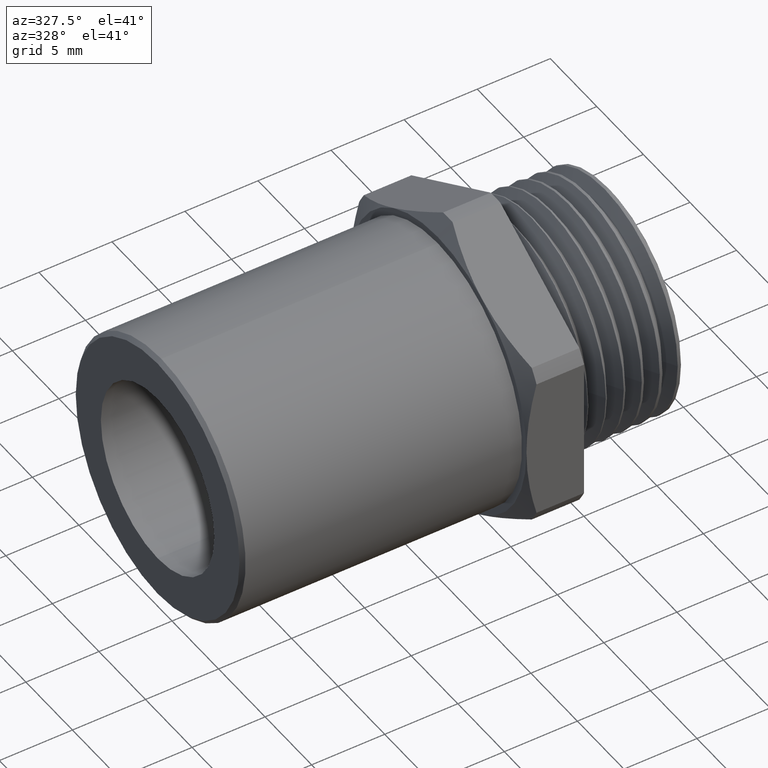
[diagram: clean part render]
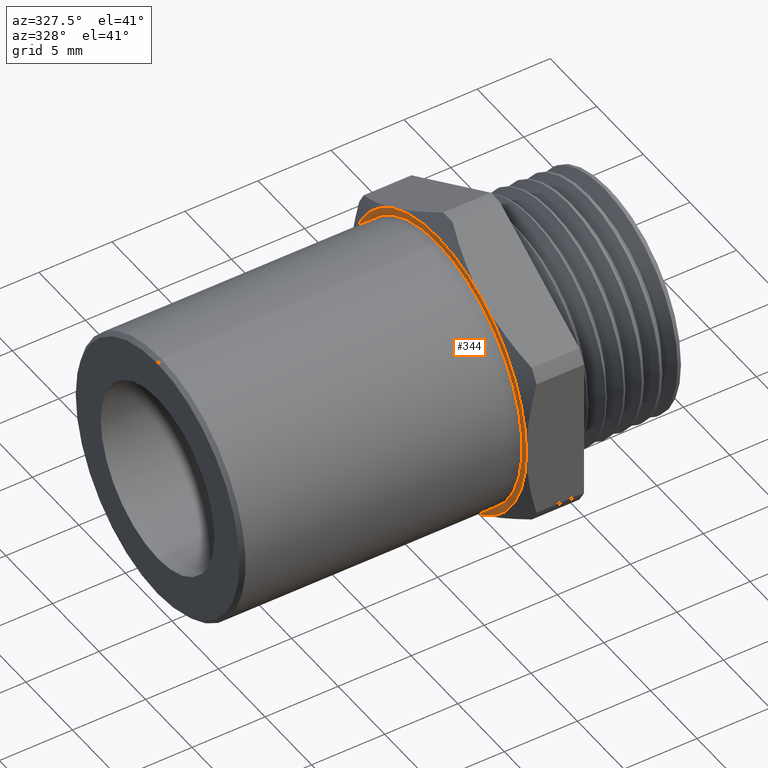
[diagram: same view with one face highlighted and labeled with its STEP entity id]
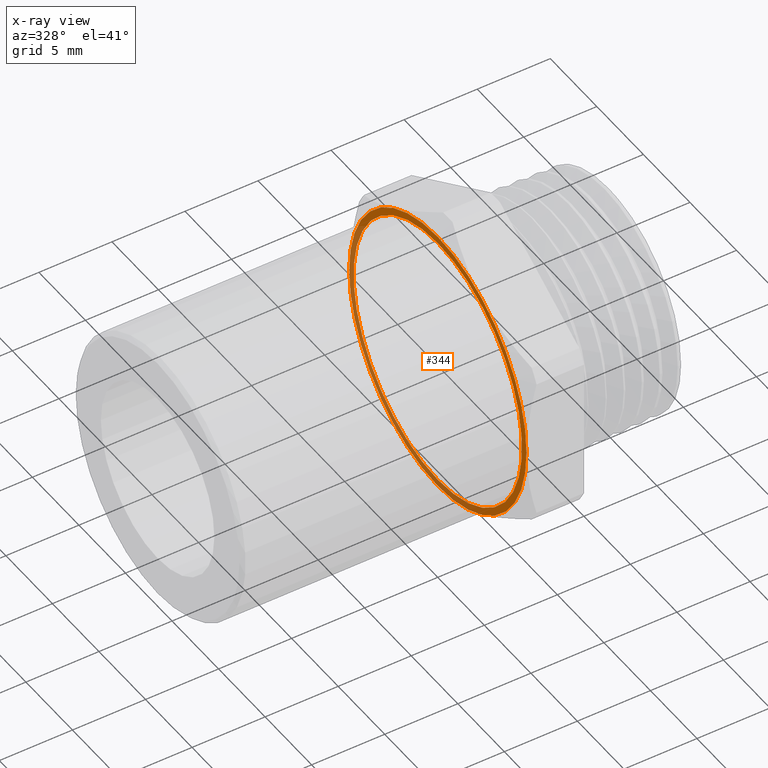
[diagram: x-ray of the same camera — body ghosted, the highlighted face saturated]
A machine part, auxiliary view. The second image highlights one B-rep face of the part: STEP entity #344.
The next image is the same camera in x-ray: the body ghosted, the highlighted face saturated — about 41% of this face is hidden behind the body in this view.
In plain terms, the highlighted planar face has unit normal (1, 0, 0).
Its self-contained STEP definition (entity closure, byte-faithful):
#135 = VERTEX_POINT ( 'NONE', #980 ) ;
#137 = VERTEX_POINT ( 'NONE', #975 ) ;
#303 = VERTEX_POINT ( 'NONE', #1305 ) ;
#333 = EDGE_CURVE ( 'NONE', #338, #303, #1328, .T. ) ;
#335 = ORIENTED_EDGE ( 'NONE', *, *, #333, .T. ) ;
#338 = VERTEX_POINT ( 'NONE', #1317 ) ;
#340 = VERTEX_POINT ( 'NONE', #1311 ) ;
#341 = EDGE_CURVE ( 'NONE', #340, #338, #1310, .T. ) ;
#343 = ORIENTED_EDGE ( 'NONE', *, *, #786, .F. ) ;
#344 = ADVANCED_FACE ( 'NONE', ( #1364, #1363 ), #1369, .F. ) ;
#345 = ORIENTED_EDGE ( 'NONE', *, *, #348, .F. ) ;
#346 = EDGE_LOOP ( 'NONE', ( #343, #345 ) ) ;
#347 = EDGE_LOOP ( 'NONE', ( #350, #335, #360, #355, #369, #367, #366 ) ) ;
#348 = EDGE_CURVE ( 'NONE', #137, #135, #1358, .T. ) ;
#350 = ORIENTED_EDGE ( 'NONE', *, *, #341, .T. ) ;
#351 = VERTEX_POINT ( 'NONE', #1353 ) ;
#355 = ORIENTED_EDGE ( 'NONE', *, *, #357, .T. ) ;
#356 = VERTEX_POINT ( 'NONE', #1348 ) ;
#357 = EDGE_CURVE ( 'NONE', #356, #351, #1347, .T. ) ;
#360 = ORIENTED_EDGE ( 'NONE', *, *, #372, .T. ) ;
#365 = EDGE_CURVE ( 'NONE', #511, #340, #1396, .T. ) ;
#366 = ORIENTED_EDGE ( 'NONE', *, *, #365, .T. ) ;
#367 = ORIENTED_EDGE ( 'NONE', *, *, #514, .T. ) ;
#369 = ORIENTED_EDGE ( 'NONE', *, *, #370, .T. ) ;
#370 = EDGE_CURVE ( 'NONE', #351, #510, #1386, .T. ) ;
#372 = EDGE_CURVE ( 'NONE', #303, #356, #1381, .T. ) ;
#510 = VERTEX_POINT ( 'NONE', #1652 ) ;
#511 = VERTEX_POINT ( 'NONE', #1651 ) ;
#514 = EDGE_CURVE ( 'NONE', #510, #511, #1646, .T. ) ;
#786 = EDGE_CURVE ( 'NONE', #135, #137, #2217, .T. ) ;
#975 = CARTESIAN_POINT ( 'NONE',  ( -0.4649999999999997500, 4.362804221962446900E-017, -0.3562500000000000700 ) ) ;
#980 = CARTESIAN_POINT ( 'NONE',  ( -0.4649999999999997500, 0.0000000000000000000, 0.3562500000000000700 ) ) ;
#1305 = CARTESIAN_POINT ( 'NONE',  ( -0.4649999999999998000, -0.1875000000000001100, -0.3247595264191646700 ) ) ;
#1307 = DIRECTION ( 'NONE',  ( -1.000000000000000000, 0.0000000000000000000, 0.0000000000000000000 ) ) ;
#1308 = CARTESIAN_POINT ( 'NONE',  ( -0.4649999999999998000, 0.0000000000000000000, 0.0000000000000000000 ) ) ;
#1309 = AXIS2_PLACEMENT_3D ( 'NONE', #1308, #1307, #1372 ) ;
#1310 = CIRCLE ( 'NONE', #1309, 0.3749999999999999400 ) ;
#1311 = CARTESIAN_POINT ( 'NONE',  ( -0.4649999999999998000, 0.3750000000000005000, 0.0000000000000000000 ) ) ;
#1317 = CARTESIAN_POINT ( 'NONE',  ( -0.4649999999999998000, 0.1875000000000002500, -0.3247595264191647200 ) ) ;
#1324 = DIRECTION ( 'NONE',  ( 0.0000000000000000000, 0.0000000000000000000, 1.000000000000000000 ) ) ;
#1325 = DIRECTION ( 'NONE',  ( -1.000000000000000000, 0.0000000000000000000, 0.0000000000000000000 ) ) ;
#1326 = CARTESIAN_POINT ( 'NONE',  ( -0.4649999999999998000, 0.0000000000000000000, 0.0000000000000000000 ) ) ;
#1327 = AXIS2_PLACEMENT_3D ( 'NONE', #1326, #1325, #1324 ) ;
#1328 = CIRCLE ( 'NONE', #1327, 0.3749999999999999400 ) ;
#1343 = DIRECTION ( 'NONE',  ( 0.0000000000000000000, 0.0000000000000000000, 1.000000000000000000 ) ) ;
#1344 = DIRECTION ( 'NONE',  ( -1.000000000000000000, 0.0000000000000000000, 0.0000000000000000000 ) ) ;
#1345 = CARTESIAN_POINT ( 'NONE',  ( -0.4649999999999998000, 0.0000000000000000000, 0.0000000000000000000 ) ) ;
#1346 = AXIS2_PLACEMENT_3D ( 'NONE', #1345, #1344, #1343 ) ;
#1347 = CIRCLE ( 'NONE', #1346, 0.3749999999999999400 ) ;
#1348 = CARTESIAN_POINT ( 'NONE',  ( -0.4649999999999998000, -0.3749999999999999400, 0.0000000000000000000 ) ) ;
#1353 = CARTESIAN_POINT ( 'NONE',  ( -0.4649999999999998000, -0.1875000000000000600, 0.3247595264191645600 ) ) ;
#1354 = DIRECTION ( 'NONE',  ( 0.0000000000000000000, 0.0000000000000000000, 1.000000000000000000 ) ) ;
#1355 = DIRECTION ( 'NONE',  ( -1.000000000000000000, 0.0000000000000000000, 0.0000000000000000000 ) ) ;
#1356 = CARTESIAN_POINT ( 'NONE',  ( -0.4649999999999997500, 0.0000000000000000000, 0.0000000000000000000 ) ) ;
#1357 = AXIS2_PLACEMENT_3D ( 'NONE', #1356, #1355, #1354 ) ;
#1358 = CIRCLE ( 'NONE', #1357, 0.3562500000000000700 ) ;
#1359 = DIRECTION ( 'NONE',  ( 0.0000000000000000000, 0.0000000000000000000, -1.000000000000000000 ) ) ;
#1360 = DIRECTION ( 'NONE',  ( 1.000000000000000000, 0.0000000000000000000, 0.0000000000000000000 ) ) ;
#1361 = CARTESIAN_POINT ( 'NONE',  ( -0.4649999999999998000, 0.4218750000000000000, 0.0000000000000000000 ) ) ;
#1362 = AXIS2_PLACEMENT_3D ( 'NONE', #1361, #1360, #1359 ) ;
#1363 = FACE_OUTER_BOUND ( 'NONE', #347, .T. ) ;
#1364 = FACE_BOUND ( 'NONE', #346, .T. ) ;
#1369 = PLANE ( 'NONE',  #1362 ) ;
#1372 = DIRECTION ( 'NONE',  ( 0.0000000000000000000, 0.0000000000000000000, 1.000000000000000000 ) ) ;
#1378 = DIRECTION ( 'NONE',  ( 0.0000000000000000000, 0.0000000000000000000, 1.000000000000000000 ) ) ;
#1379 = DIRECTION ( 'NONE',  ( -1.000000000000000000, 0.0000000000000000000, 0.0000000000000000000 ) ) ;
#1380 = AXIS2_PLACEMENT_3D ( 'NONE', #1387, #1379, #1378 ) ;
#1381 = CIRCLE ( 'NONE', #1380, 0.3749999999999999400 ) ;
#1382 = DIRECTION ( 'NONE',  ( 0.0000000000000000000, 0.0000000000000000000, 1.000000000000000000 ) ) ;
#1383 = DIRECTION ( 'NONE',  ( -1.000000000000000000, 0.0000000000000000000, 0.0000000000000000000 ) ) ;
#1384 = CARTESIAN_POINT ( 'NONE',  ( -0.4649999999999998000, 0.0000000000000000000, 0.0000000000000000000 ) ) ;
#1385 = AXIS2_PLACEMENT_3D ( 'NONE', #1384, #1383, #1382 ) ;
#1386 = CIRCLE ( 'NONE', #1385, 0.3749999999999999400 ) ;
#1387 = CARTESIAN_POINT ( 'NONE',  ( -0.4649999999999998000, 0.0000000000000000000, 0.0000000000000000000 ) ) ;
#1388 = DIRECTION ( 'NONE',  ( 0.0000000000000000000, 0.0000000000000000000, 1.000000000000000000 ) ) ;
#1389 = DIRECTION ( 'NONE',  ( -1.000000000000000000, 0.0000000000000000000, 0.0000000000000000000 ) ) ;
#1390 = CARTESIAN_POINT ( 'NONE',  ( -0.4649999999999998000, 0.0000000000000000000, 0.0000000000000000000 ) ) ;
#1391 = AXIS2_PLACEMENT_3D ( 'NONE', #1390, #1389, #1388 ) ;
#1396 = CIRCLE ( 'NONE', #1391, 0.3749999999999999400 ) ;
#1642 = DIRECTION ( 'NONE',  ( 0.0000000000000000000, 0.0000000000000000000, 1.000000000000000000 ) ) ;
#1643 = DIRECTION ( 'NONE',  ( -1.000000000000000000, 0.0000000000000000000, 0.0000000000000000000 ) ) ;
#1644 = CARTESIAN_POINT ( 'NONE',  ( -0.4649999999999998000, 0.0000000000000000000, 0.0000000000000000000 ) ) ;
#1645 = AXIS2_PLACEMENT_3D ( 'NONE', #1644, #1643, #1642 ) ;
#1646 = CIRCLE ( 'NONE', #1645, 0.3749999999999999400 ) ;
#1651 = CARTESIAN_POINT ( 'NONE',  ( -0.4649999999999998000, 0.1875000000000000800, 0.3247595264191648300 ) ) ;
#1652 = CARTESIAN_POINT ( 'NONE',  ( -0.4649999999999998000, 0.0000000000000000000, 0.3749999999999999400 ) ) ;
#2211 = DIRECTION ( 'NONE',  ( 0.0000000000000000000, 0.0000000000000000000, 1.000000000000000000 ) ) ;
#2212 = DIRECTION ( 'NONE',  ( -1.000000000000000000, 0.0000000000000000000, 0.0000000000000000000 ) ) ;
#2213 = CARTESIAN_POINT ( 'NONE',  ( -0.4649999999999997500, 0.0000000000000000000, 0.0000000000000000000 ) ) ;
#2214 = AXIS2_PLACEMENT_3D ( 'NONE', #2213, #2212, #2211 ) ;
#2217 = CIRCLE ( 'NONE', #2214, 0.3562500000000000700 ) ;